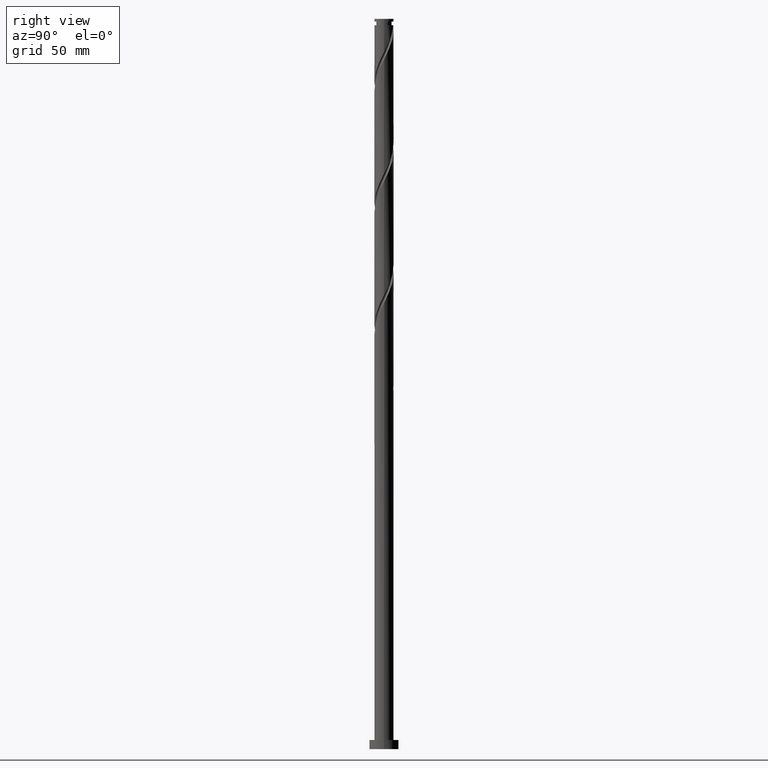
[diagram: clean part render]
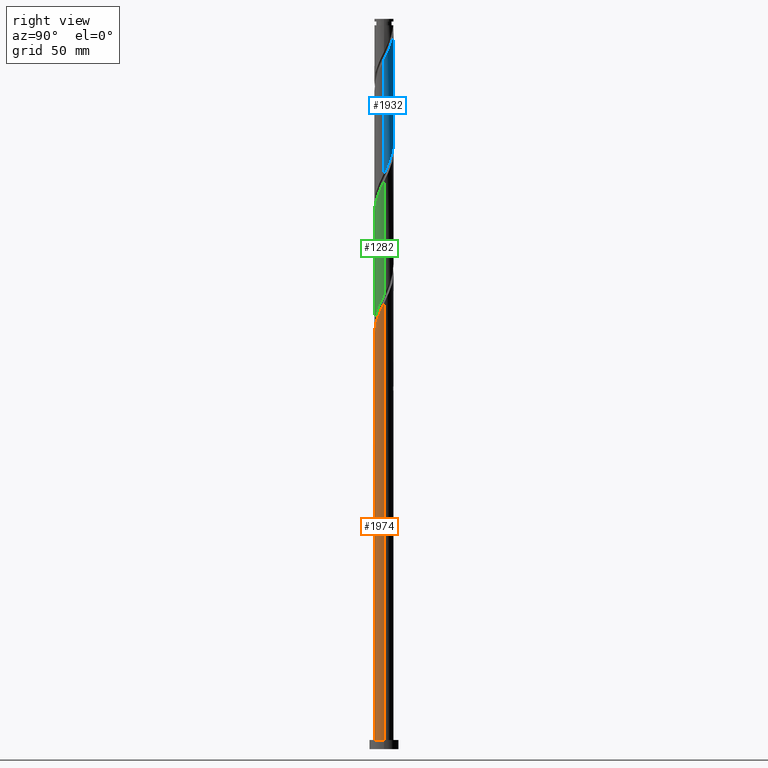
[diagram: same view with three faces highlighted in distinct colors, each labeled with its STEP entity id]
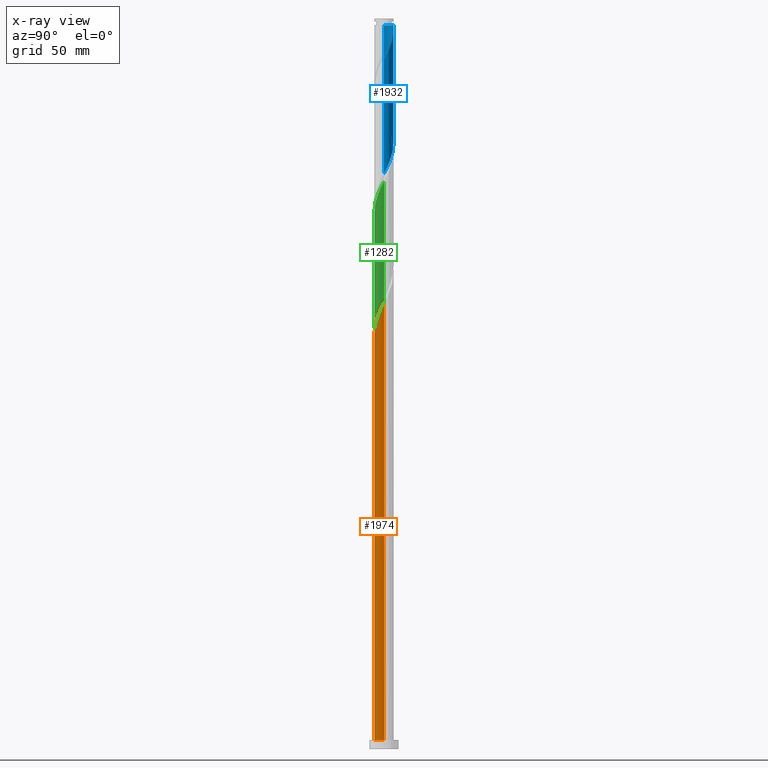
[diagram: x-ray of the same camera — body ghosted, the three highlighted faces saturated]
A machine part, right view with three faces highlighted in distinct colors.
The next image is the same camera in x-ray (body ghosted, the three faces saturated) — at least one of them is partly hidden behind the body in this view.
Their STEP definitions:

[orange] entity #1974 — the highlighted cylindrical surface (edge-blend (fillet) strip) has radius 5.25 mm, axis along (-0, -0, -1).
#50 = CARTESIAN_POINT ( 'NONE',  ( -5.250000000000007105, -2.018036081789796994E-14, 211.0236160880426723 ) ) ;
#59 = CARTESIAN_POINT ( 'NONE',  ( -3.933332297989963866, -3.477268616829745529, 218.7046148871196465 ) ) ;
#67 = CARTESIAN_POINT ( 'NONE',  ( -0.04779884617294594129, -5.249782402186265351, 227.5935037760085322 ) ) ;
#73 = EDGE_LOOP ( 'NONE', ( #1934, #1780, #535, #1417 ) ) ;
#78 = CARTESIAN_POINT ( 'NONE',  ( 5.153354738608597607, -1.144515236584392692, 242.0379482204530461 ) ) ;
#186 = CARTESIAN_POINT ( 'NONE',  ( -1.676917713865612836, -5.005489703279514480, 224.2601704426753031 ) ) ;
#197 = CARTESIAN_POINT ( 'NONE',  ( -4.298807956775191563, -3.063858733603724627, 217.5935037760086459 ) ) ;
#224 = VERTEX_POINT ( 'NONE', #1618 ) ;
#229 = CARTESIAN_POINT ( 'NONE',  ( -1.138245462365774729, -5.125124122146097250, 225.3712815537863889 ) ) ;
#294 = CARTESIAN_POINT ( 'NONE',  ( 0.000000000000000000, 0.000000000000000000, 400.0000000000000000 ) ) ;
#354 = CARTESIAN_POINT ( 'NONE',  ( 5.250000000000007105, 3.647413362642301460E-15, 244.3569494213759867 ) ) ;
#364 = CARTESIAN_POINT ( 'NONE',  ( -5.007610418509825578, -1.576812574921922616, 214.2601704426752178 ) ) ;
#384 = CARTESIAN_POINT ( 'NONE',  ( -4.570344347720273426, -2.583496186035778575, 216.4823926648975316 ) ) ;
#470 = CARTESIAN_POINT ( 'NONE',  ( 0.000000000000000000, 0.000000000000000000, 5.000000000000000000 ) ) ;
#490 = VECTOR ( 'NONE', #853, 1000.000000000000000 ) ;
#509 = LINE ( 'NONE', #973, #867 ) ;
#522 = CARTESIAN_POINT ( 'NONE',  ( 5.216027204956867891, -0.5962886860824341273, 243.1490593315642172 ) ) ;
#535 = ORIENTED_EDGE ( 'NONE', *, *, #1150, .T. ) ;
#540 = CARTESIAN_POINT ( 'NONE',  ( -4.841880738665356176, -2.103133638467831634, 215.3712815537863605 ) ) ;
#584 = VERTEX_POINT ( 'NONE', #939 ) ;
#639 = DIRECTION ( 'NONE',  ( 0.000000000000000000, 0.000000000000000000, 1.000000000000000000 ) ) ;
#679 = CARTESIAN_POINT ( 'NONE',  ( 5.250000000000007105, -0.2991121215937790900, 243.7513581119914079 ) ) ;
#683 = EDGE_CURVE ( 'NONE', #584, #224, #1035, .T. ) ;
#689 = CARTESIAN_POINT ( 'NONE',  ( 1.044736808961954866, -5.145000000000004903, 229.8157259982308176 ) ) ;
#695 = CARTESIAN_POINT ( 'NONE',  ( -5.250000000000007105, -2.018036081789797309E-14, 211.0236160880426723 ) ) ;
#708 = EDGE_CURVE ( 'NONE', #1312, #1139, #1533, .T. ) ;
#814 = AXIS2_PLACEMENT_3D ( 'NONE', #470, #639, #1380 ) ;
#816 = CARTESIAN_POINT ( 'NONE',  ( -3.567856639204736613, -3.890678500055767319, 219.8157259982307892 ) ) ;
#825 = CARTESIAN_POINT ( 'NONE',  ( 4.242307527799417777, -3.141624902544846609, 237.5935037760085606 ) ) ;
#833 = CARTESIAN_POINT ( 'NONE',  ( -2.680972866025394197, -4.547456946508574127, 222.0379482204530177 ) ) ;
#844 = CARTESIAN_POINT ( 'NONE',  ( 4.802783475295240301, -2.190947529756130052, 239.8157259982307892 ) ) ;
#853 = DIRECTION ( 'NONE',  ( -0.000000000000000000, -0.000000000000000000, -1.000000000000000000 ) ) ;
#867 = VECTOR ( 'NONE', #1898, 1000.000000000000000 ) ;
#911 = DIRECTION ( 'NONE',  ( -0.000000000000000000, -0.000000000000000000, -1.000000000000000000 ) ) ;
#939 = CARTESIAN_POINT ( 'NONE',  ( -5.250000000000000000, 0.000000000000000000, 5.000000000000000000 ) ) ;
#958 = CARTESIAN_POINT ( 'NONE',  ( 3.047074594884212395, -4.275258636996277950, 234.2601704426752462 ) ) ;
#973 = CARTESIAN_POINT ( 'NONE',  ( -5.250000000000000000, 0.000000000000000000, 400.0000000000000000 ) ) ;
#977 = CARTESIAN_POINT ( 'NONE',  ( 0.5039755185200481824, -5.254806263359855123, 228.7046148871197317 ) ) ;
#985 = CARTESIAN_POINT ( 'NONE',  ( -2.178945289945503294, -4.776473324894045192, 223.1490593315641320 ) ) ;
#1035 = CIRCLE ( 'NONE', #814, 5.250000000000000000 ) ;
#1117 = CARTESIAN_POINT ( 'NONE',  ( 5.250000000000007105, 3.647413362642301460E-15, 244.3569494213760152 ) ) ;
#1139 = VERTEX_POINT ( 'NONE', #1117 ) ;
#1150 = EDGE_CURVE ( 'NONE', #1312, #584, #509, .T. ) ;
#1152 = CARTESIAN_POINT ( 'NONE',  ( -3.124414752615067403, -4.219067723282170057, 220.9268371093419603 ) ) ;
#1292 = CARTESIAN_POINT ( 'NONE',  ( 1.585498099403859662, -5.035193736640157347, 230.9268371093419034 ) ) ;
#1301 = CARTESIAN_POINT ( 'NONE',  ( 3.869364956144051959, -3.548311547224173523, 236.4823926648974179 ) ) ;
#1308 = CARTESIAN_POINT ( 'NONE',  ( -0.5995732108659377335, -5.244758541012678243, 226.4823926648974748 ) ) ;
#1312 = VERTEX_POINT ( 'NONE', #695 ) ;
#1380 = DIRECTION ( 'NONE',  ( 1.000000000000000000, 0.000000000000000000, 0.000000000000000000 ) ) ;
#1417 = ORIENTED_EDGE ( 'NONE', *, *, #683, .T. ) ;
#1428 = AXIS2_PLACEMENT_3D ( 'NONE', #294, #911, #1683 ) ;
#1451 = CARTESIAN_POINT ( 'NONE',  ( -5.250000000000005329, -0.2511809962554388820, 211.5321646136066533 ) ) ;
#1463 = CARTESIAN_POINT ( 'NONE',  ( -5.226019884829717022, -0.5012146878977671305, 212.0379482204530461 ) ) ;
#1475 = CARTESIAN_POINT ( 'NONE',  ( -5.173340098354294092, -1.050491511376014042, 213.1490593315641888 ) ) ;
#1500 = LINE ( 'NONE', #1977, #490 ) ;
#1529 = CYLINDRICAL_SURFACE ( 'NONE', #1428, 5.250000000000000000 ) ;
#1533 =( BOUNDED_CURVE ( )  B_SPLINE_CURVE ( 2, ( #50, #1451, #1463, #1475, #364, #540, #384, #197, #59, #816, #1152, #833, #985, #186, #229, #1308, #67, #977, #689, #1292, #1922, #1750, #958, #1587, #1301, #825, #1903, #844, #1606, #78, #522, #679, #354 ),
 .UNSPECIFIED., .F., .T. ) 
 B_SPLINE_CURVE_WITH_KNOTS ( ( 3, 2, 2, 2, 2, 2, 2, 2, 2, 2, 2, 2, 2, 2, 2, 2, 3 ),
 ( 0.05452860127731153084, 0.05833333333333334814, 0.06666666666666665186, 0.07499999999999995559, 0.08333333333333337034, 0.09166666666666667407, 0.09999999999999997780, 0.1083333333333332815, 0.1166666666666666963, 0.1250000000000000000, 0.1333333333333333037, 0.1416666666666667185, 0.1500000000000000222, 0.1583333333333333259, 0.1666666666666666297, 0.1750000000000000444, 0.1795286012773113782 ),
 .UNSPECIFIED. ) 
 CURVE ( )  GEOMETRIC_REPRESENTATION_ITEM ( )  RATIONAL_B_SPLINE_CURVE ( ( 0.9066196499552294785, 0.9068171577856423138, 0.9090909090909411461, 0.9041108139711893088, 0.9090909090909411461, 0.9041108139711893088, 0.9090909090909411461, 0.9041108139711893088, 0.9090909090909411461, 0.9041108139711893088, 0.9090909090909411461, 0.9041108139711893088, 0.9090909090909411461, 0.9041108139711893088, 0.9090909090909411461, 0.9041108139711893088, 0.9090909090909411461, 0.9041108139711893088, 0.9090909090909411461, 0.9041108139711893088, 0.9090909090909411461, 0.9041108139711893088, 0.9090909090909411461, 0.9041108139711893088, 0.9090909090909411461, 0.9041108139711893088, 0.9090909090909411461, 0.9041108139711893088, 0.9090909090909411461, 0.9041108139711893088, 0.9090909090909411461, 0.9063845652764883631, 0.9066196499552294785 ) ) 
 REPRESENTATION_ITEM ( '' )  );
#1587 = CARTESIAN_POINT ( 'NONE',  ( 3.496422384488685697, -3.954998191903503102, 235.3712815537863889 ) ) ;
#1606 = CARTESIAN_POINT ( 'NONE',  ( 4.978069106951918954, -1.667731383170261594, 240.9268371093419319 ) ) ;
#1618 = CARTESIAN_POINT ( 'NONE',  ( 5.250000000000000000, 6.429395695523603167E-16, 5.000000000000000000 ) ) ;
#1640 = EDGE_CURVE ( 'NONE', #1139, #224, #1500, .T. ) ;
#1683 = DIRECTION ( 'NONE',  ( -1.000000000000000000, 0.000000000000000000, 0.000000000000000000 ) ) ;
#1695 = FACE_OUTER_BOUND ( 'NONE', #73, .T. ) ;
#1750 = CARTESIAN_POINT ( 'NONE',  ( 2.597726805279741757, -4.595519082089055019, 233.1490593315641604 ) ) ;
#1780 = ORIENTED_EDGE ( 'NONE', *, *, #708, .F. ) ;
#1898 = DIRECTION ( 'NONE',  ( -0.000000000000000000, -0.000000000000000000, -1.000000000000000000 ) ) ;
#1903 = CARTESIAN_POINT ( 'NONE',  ( 4.522545501547327262, -2.666286216150488553, 238.7046148871197317 ) ) ;
#1922 = CARTESIAN_POINT ( 'NONE',  ( 2.091612452341800932, -4.815356409364604851, 232.0379482204530177 ) ) ;
#1934 = ORIENTED_EDGE ( 'NONE', *, *, #1640, .F. ) ;
#1974 = ADVANCED_FACE ( 'NONE', ( #1695 ), #1529, .T. ) ;
#1977 = CARTESIAN_POINT ( 'NONE',  ( 5.250000000000000000, 6.429395695523603167E-16, 400.0000000000000000 ) ) ;

[blue] entity #1932 — the highlighted cylindrical surface (edge-blend (fillet) strip) has radius 5.25 mm, axis along (-0, -0, -1).
#71 = VECTOR ( 'NONE', #1143, 1000.000000000000000 ) ;
#82 = VERTEX_POINT ( 'NONE', #344 ) ;
#87 = CARTESIAN_POINT ( 'NONE',  ( 5.216027204956860786, 0.5962886860824307966, 316.4823926648974748 ) ) ;
#96 = CARTESIAN_POINT ( 'NONE',  ( 2.597726805279742202, 4.595519082089047913, 326.4823926648975885 ) ) ;
#105 = CARTESIAN_POINT ( 'NONE',  ( 4.522545501547324598, 2.666286216150479671, 320.9268371093419887 ) ) ;
#126 = DIRECTION ( 'NONE',  ( -0.000000000000000000, -0.000000000000000000, -1.000000000000000000 ) ) ;
#128 = ORIENTED_EDGE ( 'NONE', *, *, #279, .T. ) ;
#151 = EDGE_LOOP ( 'NONE', ( #1455, #128, #741, #192, #624 ) ) ;
#192 = ORIENTED_EDGE ( 'NONE', *, *, #763, .F. ) ;
#209 = CARTESIAN_POINT ( 'NONE',  ( -5.250000000000000000, 0.000000000000000000, 400.0000000000000000 ) ) ;
#218 =( BOUNDED_CURVE ( )  B_SPLINE_CURVE ( 2, ( #1626, #1110, #342, #661, #670, #1123, #967, #1597, #1914, #1134, #1760, #1646, #1503, #245, #1979, #266, #426, #1635, #1676 ),
 .UNSPECIFIED., .F., .T. ) 
 B_SPLINE_CURVE_WITH_KNOTS ( ( 3, 2, 2, 2, 2, 2, 2, 2, 2, 3 ),
 ( 0.6795286012773115170, 0.6833333333333333481, 0.6916666666666667629, 0.7000000000000000666, 0.7083333333333333703, 0.7166666666666668961, 0.7250000000000001998, 0.7333333333333336146, 0.7416666666666670293, 0.7500000000000003331 ),
 .UNSPECIFIED. ) 
 CURVE ( )  GEOMETRIC_REPRESENTATION_ITEM ( )  RATIONAL_B_SPLINE_CURVE ( ( 0.9066196499552294785, 0.9068171577856422028, 0.9090909090909411461, 0.9041108139711893088, 0.9090909090909411461, 0.9041108139711893088, 0.9090909090909411461, 0.9041108139711893088, 0.9090909090909411461, 0.9041108139711893088, 0.9090909090909411461, 0.9041108139711893088, 0.9090909090909411461, 0.9041108139711893088, 0.9090909090909411461, 0.9041108139711893088, 0.9090909090909411461, 0.9041108139711890868, 0.9090909090909413681 ) ) 
 REPRESENTATION_ITEM ( '' )  );
#238 = CARTESIAN_POINT ( 'NONE',  ( 3.869364956144049295, 3.548311547224167750, 323.1490593315641604 ) ) ;
#245 = CARTESIAN_POINT ( 'NONE',  ( 1.676917713865613502, 5.005489703279513591, 390.9268371093419319 ) ) ;
#246 = CARTESIAN_POINT ( 'NONE',  ( 1.585498099403864769, 5.035193736640148465, 328.7046148871197033 ) ) ;
#258 = CARTESIAN_POINT ( 'NONE',  ( -4.570344347720266320, 2.583496186035776354, 343.1490593315642172 ) ) ;
#266 = CARTESIAN_POINT ( 'NONE',  ( 0.5995732108659387327, 5.244758541012678243, 393.1490593315641604 ) ) ;
#279 = EDGE_CURVE ( 'NONE', #82, #1296, #1788, .T. ) ;
#342 = CARTESIAN_POINT ( 'NONE',  ( 5.226019884829717022, 0.5012146878977641329, 378.7046148871197033 ) ) ;
#344 = CARTESIAN_POINT ( 'NONE',  ( 5.250000000000006217, -2.989683084133032828E-16, 377.6902827547093580 ) ) ;
#366 = DIRECTION ( 'NONE',  ( -0.000000000000000000, -0.000000000000000000, -1.000000000000000000 ) ) ;
#383 = CIRCLE ( 'NONE', #640, 5.249999999999964473 ) ;
#404 = CARTESIAN_POINT ( 'NONE',  ( -2.178945289945499297, 4.776473324894038974, 336.4823926648974179 ) ) ;
#416 = CARTESIAN_POINT ( 'NONE',  ( -4.841880738665349959, 2.103133638467831190, 344.2601704426751894 ) ) ;
#426 = CARTESIAN_POINT ( 'NONE',  ( 0.04779884617294657967, 5.249782402186265351, 394.2601704426753031 ) ) ;
#428 = CARTESIAN_POINT ( 'NONE',  ( 0.000000000000000000, 0.000000000000000000, 396.4823926648974748 ) ) ;
#434 = VERTEX_POINT ( 'NONE', #886 ) ;
#439 = CARTESIAN_POINT ( 'NONE',  ( -1.138245462365771621, 5.125124122146089256, 334.2601704426751894 ) ) ;
#475 = EDGE_CURVE ( 'NONE', #1266, #434, #383, .T. ) ;
#481 = VECTOR ( 'NONE', #366, 1000.000000000000000 ) ;
#485 = FACE_OUTER_BOUND ( 'NONE', #151, .T. ) ;
#502 = EDGE_CURVE ( 'NONE', #1602, #1296, #1389, .T. ) ;
#560 = CARTESIAN_POINT ( 'NONE',  ( -5.226019884829710804, 0.5012146878977687958, 347.5935037760086175 ) ) ;
#570 = CARTESIAN_POINT ( 'NONE',  ( 2.091612452341802708, 4.815356409364597745, 327.5935037760085606 ) ) ;
#576 = CARTESIAN_POINT ( 'NONE',  ( -5.250000000000000000, -3.557722870118329166E-15, 348.6078359084190197 ) ) ;
#581 = CARTESIAN_POINT ( 'NONE',  ( 5.153354738608594054, 1.144515236584384255, 317.5935037760086175 ) ) ;
#591 = CARTESIAN_POINT ( 'NONE',  ( -5.250000000000000000, -3.557722870118329166E-15, 348.6078359084190197 ) ) ;
#624 = ORIENTED_EDGE ( 'NONE', *, *, #475, .T. ) ;
#640 = AXIS2_PLACEMENT_3D ( 'NONE', #428, #126, #1505 ) ;
#661 = CARTESIAN_POINT ( 'NONE',  ( 5.173340098354294092, 1.050491511376013376, 379.8157259982307323 ) ) ;
#670 = CARTESIAN_POINT ( 'NONE',  ( 5.007610418509827355, 1.576812574921920840, 380.9268371093418750 ) ) ;
#720 = CARTESIAN_POINT ( 'NONE',  ( -0.04779884617294290206, 5.249782402186260022, 332.0379482204530177 ) ) ;
#729 = CARTESIAN_POINT ( 'NONE',  ( 0.5039755185200498477, 5.254806263359850682, 330.9268371093418750 ) ) ;
#741 = ORIENTED_EDGE ( 'NONE', *, *, #502, .F. ) ;
#746 = CARTESIAN_POINT ( 'NONE',  ( 5.250000000000000888, 4.753596103771549200E-15, 315.2745025750855916 ) ) ;
#763 = EDGE_CURVE ( 'NONE', #1266, #1602, #1283, .T. ) ;
#850 = EDGE_CURVE ( 'NONE', #82, #434, #218, .T. ) ;
#876 = CARTESIAN_POINT ( 'NONE',  ( 3.047074594884214616, 4.275258636996269068, 325.3712815537864458 ) ) ;
#886 = CARTESIAN_POINT ( 'NONE',  ( -1.044736808961976182, 5.145000000000003126, 396.4823926648977022 ) ) ;
#896 = CARTESIAN_POINT ( 'NONE',  ( -4.298807956775186234, 3.063858733603723739, 342.0379482204530746 ) ) ;
#967 = CARTESIAN_POINT ( 'NONE',  ( 4.570344347720274314, 2.583496186035778130, 383.1490593315640467 ) ) ;
#1001 = CARTESIAN_POINT ( 'NONE',  ( -5.249999999999964473, 0.000000000000000000, 396.4823926648974748 ) ) ;
#1013 = CARTESIAN_POINT ( 'NONE',  ( -0.5995732108659357351, 5.244758541012672026, 333.1490593315642172 ) ) ;
#1024 = CARTESIAN_POINT ( 'NONE',  ( -3.124414752615059854, 4.219067723282166504, 338.7046148871197033 ) ) ;
#1036 = CARTESIAN_POINT ( 'NONE',  ( 5.250000000000000888, 0.2991121215937717071, 315.8800938844702273 ) ) ;
#1110 = CARTESIAN_POINT ( 'NONE',  ( 5.250000000000007105, 0.2511809962554356068, 378.1988312802735095 ) ) ;
#1123 = CARTESIAN_POINT ( 'NONE',  ( 4.841880738665357065, 2.103133638467828970, 382.0379482204530177 ) ) ;
#1134 = CARTESIAN_POINT ( 'NONE',  ( 3.567856639204737945, 3.890678500055766431, 386.4823926648974179 ) ) ;
#1143 = DIRECTION ( 'NONE',  ( -0.000000000000000000, -0.000000000000000000, -1.000000000000000000 ) ) ;
#1205 = CARTESIAN_POINT ( 'NONE',  ( -5.250000000000001776, 0.2511809962554235609, 348.0992873828550387 ) ) ;
#1210 = DIRECTION ( 'NONE',  ( -0.000000000000000000, -0.000000000000000000, -1.000000000000000000 ) ) ;
#1266 = VERTEX_POINT ( 'NONE', #1001 ) ;
#1283 = LINE ( 'NONE', #209, #71 ) ;
#1296 = VERTEX_POINT ( 'NONE', #1641 ) ;
#1348 = CARTESIAN_POINT ( 'NONE',  ( 3.496422384488685697, 3.954998191903494220, 324.2601704426754736 ) ) ;
#1375 = DIRECTION ( 'NONE',  ( -1.000000000000000000, 0.000000000000000000, 0.000000000000000000 ) ) ;
#1389 =( BOUNDED_CURVE ( )  B_SPLINE_CURVE ( 2, ( #591, #1205, #560, #1817, #1636, #416, #258, #896, #1494, #1484, #1024, #1797, #404, #1669, #439, #1013, #720, #729, #1648, #246, #570, #96, #876, #1348, #238, #1991, #105, #1970, #1678, #581, #87, #1036, #746 ),
 .UNSPECIFIED., .F., .T. ) 
 B_SPLINE_CURVE_WITH_KNOTS ( ( 3, 2, 2, 2, 2, 2, 2, 2, 2, 2, 2, 2, 2, 2, 2, 2, 3 ),
 ( 0.4295286012773112394, 0.4333333333333333481, 0.4416666666666666519, 0.4500000000000000111, 0.4583333333333333148, 0.4666666666666666741, 0.4749999999999999778, 0.4833333333333333370, 0.4916666666666666408, 0.5000000000000000000, 0.5083333333333333037, 0.5166666666666667185, 0.5250000000000000222, 0.5333333333333333259, 0.5416666666666666297, 0.5500000000000000444, 0.5545286012773114059 ),
 .UNSPECIFIED. ) 
 CURVE ( )  GEOMETRIC_REPRESENTATION_ITEM ( )  RATIONAL_B_SPLINE_CURVE ( ( 0.9066196499552243715, 0.9068171577856370957, 0.9090909090909361501, 0.9041108139711843128, 0.9090909090909361501, 0.9041108139711843128, 0.9090909090909361501, 0.9041108139711843128, 0.9090909090909361501, 0.9041108139711843128, 0.9090909090909361501, 0.9041108139711843128, 0.9090909090909361501, 0.9041108139711843128, 0.9090909090909361501, 0.9041108139711843128, 0.9090909090909361501, 0.9041108139711843128, 0.9090909090909361501, 0.9041108139711843128, 0.9090909090909361501, 0.9041108139711843128, 0.9090909090909361501, 0.9041108139711843128, 0.9090909090909361501, 0.9041108139711843128, 0.9090909090909361501, 0.9041108139711843128, 0.9090909090909361501, 0.9041108139711843128, 0.9090909090909361501, 0.9063845652764832561, 0.9066196499552243715 ) ) 
 REPRESENTATION_ITEM ( '' )  );
#1434 = CARTESIAN_POINT ( 'NONE',  ( 5.250000000000000000, 6.429395695523603167E-16, 400.0000000000000000 ) ) ;
#1455 = ORIENTED_EDGE ( 'NONE', *, *, #850, .F. ) ;
#1484 = CARTESIAN_POINT ( 'NONE',  ( -3.567856639204733948, 3.890678500055764655, 339.8157259982308460 ) ) ;
#1493 = AXIS2_PLACEMENT_3D ( 'NONE', #1724, #1210, #1375 ) ;
#1494 = CARTESIAN_POINT ( 'NONE',  ( -3.933332297989958537, 3.477268616829742420, 340.9268371093419319 ) ) ;
#1503 = CARTESIAN_POINT ( 'NONE',  ( 2.178945289945503738, 4.776473324894045192, 389.8157259982308460 ) ) ;
#1505 = DIRECTION ( 'NONE',  ( -1.000000000000000000, 0.000000000000000000, 0.000000000000000000 ) ) ;
#1597 = CARTESIAN_POINT ( 'NONE',  ( 4.298807956775192451, 3.063858733603723739, 384.2601704426753599 ) ) ;
#1602 = VERTEX_POINT ( 'NONE', #576 ) ;
#1626 = CARTESIAN_POINT ( 'NONE',  ( 5.250000000000006217, -2.989683084133032828E-16, 377.6902827547093580 ) ) ;
#1635 = CARTESIAN_POINT ( 'NONE',  ( -0.5039755185200675003, 5.254806263359856011, 395.3712815537865595 ) ) ;
#1636 = CARTESIAN_POINT ( 'NONE',  ( -5.007610418509818473, 1.576812574921923282, 345.3712815537864458 ) ) ;
#1641 = CARTESIAN_POINT ( 'NONE',  ( 5.250000000000000888, 4.753596103771549200E-15, 315.2745025750855916 ) ) ;
#1646 = CARTESIAN_POINT ( 'NONE',  ( 2.680972866025397305, 4.547456946508573239, 388.7046148871198170 ) ) ;
#1648 = CARTESIAN_POINT ( 'NONE',  ( 1.044736808961956420, 5.145000000000000462, 329.8157259982307892 ) ) ;
#1669 = CARTESIAN_POINT ( 'NONE',  ( -1.676917713865607951, 5.005489703279510927, 335.3712815537865026 ) ) ;
#1676 = CARTESIAN_POINT ( 'NONE',  ( -1.044736808961976182, 5.145000000000003126, 396.4823926648977022 ) ) ;
#1678 = CARTESIAN_POINT ( 'NONE',  ( 4.978069106951915401, 1.667731383170252712, 318.7046148871197602 ) ) ;
#1713 = CYLINDRICAL_SURFACE ( 'NONE', #1493, 5.250000000000000000 ) ;
#1724 = CARTESIAN_POINT ( 'NONE',  ( 0.000000000000000000, 0.000000000000000000, 400.0000000000000000 ) ) ;
#1760 = CARTESIAN_POINT ( 'NONE',  ( 3.124414752615067847, 4.219067723282169169, 387.5935037760086175 ) ) ;
#1788 = LINE ( 'NONE', #1434, #481 ) ;
#1797 = CARTESIAN_POINT ( 'NONE',  ( -2.680972866025389756, 4.547456946508571463, 337.5935037760086175 ) ) ;
#1817 = CARTESIAN_POINT ( 'NONE',  ( -5.173340098354292316, 1.050491511376014042, 346.4823926648975885 ) ) ;
#1914 = CARTESIAN_POINT ( 'NONE',  ( 3.933332297989966087, 3.477268616829743308, 385.3712815537863321 ) ) ;
#1932 = ADVANCED_FACE ( 'NONE', ( #485 ), #1713, .T. ) ;
#1970 = CARTESIAN_POINT ( 'NONE',  ( 4.802783475295235860, 2.190947529756125611, 319.8157259982308460 ) ) ;
#1979 = CARTESIAN_POINT ( 'NONE',  ( 1.138245462365778282, 5.125124122146095473, 392.0379482204530746 ) ) ;
#1991 = CARTESIAN_POINT ( 'NONE',  ( 4.242307527799416889, 3.141624902544836395, 322.0379482204531882 ) ) ;

[green] entity #1282 — the highlighted cylindrical surface (edge-blend (fillet) strip) has radius 5.25 mm, axis along (-0, -0, -1).
#30 = CARTESIAN_POINT ( 'NONE',  ( 5.249999999999998224, -0.2511809962554498177, 248.0992873828549250 ) ) ;
#42 = CARTESIAN_POINT ( 'NONE',  ( -1.676917713865612836, -5.005489703279514480, 290.9268371093419887 ) ) ;
#52 = CARTESIAN_POINT ( 'NONE',  ( 0.04779884617294164612, -5.249782402186259134, 232.0379482204530461 ) ) ;
#61 = CARTESIAN_POINT ( 'NONE',  ( -5.250000000000004441, -0.2511809962554525932, 278.1988312802733958 ) ) ;
#69 = CARTESIAN_POINT ( 'NONE',  ( -5.007610418509825578, -1.576812574921922616, 280.9268371093419319 ) ) ;
#79 = CARTESIAN_POINT ( 'NONE',  ( -3.124414752615067403, -4.219067723282170057, 287.5935037760086175 ) ) ;
#158 = CARTESIAN_POINT ( 'NONE',  ( 4.841880738665349959, -2.103133638467833411, 244.2601704426752462 ) ) ;
#200 = CARTESIAN_POINT ( 'NONE',  ( -5.216027204956860786, -0.5962886860824313517, 216.4823926648975316 ) ) ;
#211 = CARTESIAN_POINT ( 'NONE',  ( 1.138245462365769844, -5.125124122146091032, 234.2601704426752747 ) ) ;
#217 = EDGE_CURVE ( 'NONE', #1771, #1763, #1178, .T. ) ;
#226 = CARTESIAN_POINT ( 'NONE',  ( 5.250000000000000888, 4.753596103771549200E-15, 248.6078359084190197 ) ) ;
#244 = CARTESIAN_POINT ( 'NONE',  ( -5.249999999999999112, 7.773176018745929430E-15, 215.2745025750856200 ) ) ;
#277 = CARTESIAN_POINT ( 'NONE',  ( 4.978069106951918954, -1.667731383170261594, 307.5935037760085606 ) ) ;
#287 = AXIS2_PLACEMENT_3D ( 'NONE', #1927, #545, #1611 ) ;
#356 = CARTESIAN_POINT ( 'NONE',  ( 1.585498099403859662, -5.035193736640157347, 297.5935037760086175 ) ) ;
#374 = EDGE_CURVE ( 'NONE', #1639, #1000, #1323, .T. ) ;
#378 = CARTESIAN_POINT ( 'NONE',  ( 0.5995732108659352910, -5.244758541012672026, 233.1490593315641888 ) ) ;
#385 = CARTESIAN_POINT ( 'NONE',  ( -5.226019884829717022, -0.5012146878977671305, 278.7046148871197033 ) ) ;
#388 = VECTOR ( 'NONE', #1224, 1000.000000000000000 ) ;
#394 = CARTESIAN_POINT ( 'NONE',  ( 4.242307527799417777, -3.141624902544846609, 304.2601704426752462 ) ) ;
#444 = DIRECTION ( 'NONE',  ( -0.000000000000000000, -0.000000000000000000, -1.000000000000000000 ) ) ;
#472 = CARTESIAN_POINT ( 'NONE',  ( 5.226019884829709028, -0.5012146878977704612, 247.5935037760085891 ) ) ;
#494 = CARTESIAN_POINT ( 'NONE',  ( 4.570344347720266320, -2.583496186035776354, 243.1490593315641604 ) ) ;
#515 = CARTESIAN_POINT ( 'NONE',  ( 0.5039755185200481824, -5.254806263359855123, 295.3712815537862753 ) ) ;
#533 = CARTESIAN_POINT ( 'NONE',  ( -3.047074594884211951, -4.275258636996270845, 225.3712815537863321 ) ) ;
#541 = CARTESIAN_POINT ( 'NONE',  ( -3.933332297989963866, -3.477268616829745529, 285.3712815537863889 ) ) ;
#545 = DIRECTION ( 'NONE',  ( -0.000000000000000000, -0.000000000000000000, -1.000000000000000000 ) ) ;
#549 = CARTESIAN_POINT ( 'NONE',  ( 2.680972866025387980, -4.547456946508572351, 237.5935037760086175 ) ) ;
#565 = FACE_OUTER_BOUND ( 'NONE', #1426, .T. ) ;
#586 = VECTOR ( 'NONE', #444, 1000.000000000000000 ) ;
#642 = CARTESIAN_POINT ( 'NONE',  ( 5.250000000000001776, 4.753596103771549200E-15, 248.6078359084190481 ) ) ;
#652 = CARTESIAN_POINT ( 'NONE',  ( 4.298807956775184458, -3.063858733603725959, 242.0379482204530746 ) ) ;
#663 = CARTESIAN_POINT ( 'NONE',  ( -1.138245462365774729, -5.125124122146097250, 292.0379482204530177 ) ) ;
#672 = CARTESIAN_POINT ( 'NONE',  ( -0.5039755185200520682, -5.254806263359850682, 230.9268371093420171 ) ) ;
#691 = CARTESIAN_POINT ( 'NONE',  ( -4.841880738665356176, -2.103133638467831634, 282.0379482204530746 ) ) ;
#699 = CARTESIAN_POINT ( 'NONE',  ( -2.680972866025394197, -4.547456946508574127, 288.7046148871197033 ) ) ;
#710 = CARTESIAN_POINT ( 'NONE',  ( 5.250000000000007105, 3.647413362642301460E-15, 311.0236160880426723 ) ) ;
#711 = CARTESIAN_POINT ( 'NONE',  ( 3.496422384488685697, -3.954998191903503102, 302.0379482204530177 ) ) ;
#808 = CARTESIAN_POINT ( 'NONE',  ( -1.044736808961955532, -5.145000000000000462, 229.8157259982308176 ) ) ;
#818 = CARTESIAN_POINT ( 'NONE',  ( -5.249999999999999112, 7.773176018745929430E-15, 215.2745025750855916 ) ) ;
#856 = CARTESIAN_POINT ( 'NONE',  ( 5.216027204956867891, -0.5962886860824341273, 309.8157259982309029 ) ) ;
#864 = CARTESIAN_POINT ( 'NONE',  ( 5.153354738608597607, -1.144515236584392692, 308.7046148871197602 ) ) ;
#891 = ORIENTED_EDGE ( 'NONE', *, *, #1215, .F. ) ;
#970 = CARTESIAN_POINT ( 'NONE',  ( -3.496422384488684809, -3.954998191903495108, 224.2601704426753599 ) ) ;
#979 = CARTESIAN_POINT ( 'NONE',  ( -5.250000000000007105, -5.530913705646111693E-15, 277.6902827547093011 ) ) ;
#982 = CYLINDRICAL_SURFACE ( 'NONE', #287, 5.250000000000000000 ) ;
#987 = CARTESIAN_POINT ( 'NONE',  ( -5.153354738608592278, -1.144515236584386253, 217.5935037760086743 ) ) ;
#1000 = VERTEX_POINT ( 'NONE', #710 ) ;
#1011 = LINE ( 'NONE', #1664, #586 ) ;
#1075 = ORIENTED_EDGE ( 'NONE', *, *, #374, .F. ) ;
#1125 = CARTESIAN_POINT ( 'NONE',  ( 1.044736808961954866, -5.145000000000004903, 296.4823926648974179 ) ) ;
#1137 = CARTESIAN_POINT ( 'NONE',  ( -2.091612452341802264, -4.815356409364597745, 227.5935037760085891 ) ) ;
#1145 = CARTESIAN_POINT ( 'NONE',  ( -4.242307527799415112, -3.141624902544839060, 222.0379482204530177 ) ) ;
#1163 = CARTESIAN_POINT ( 'NONE',  ( -5.250000000000000888, -0.2991121215937590505, 215.8800938844701989 ) ) ;
#1178 =( BOUNDED_CURVE ( )  B_SPLINE_CURVE ( 2, ( #642, #30, #472, #1546, #1393, #158, #494, #652, #1274, #1895, #1599, #549, #1303, #1939, #211, #378, #52, #672, #808, #1753, #1137, #1777, #533, #970, #1924, #1145, #1445, #1608, #1769, #987, #200, #1163, #818 ),
 .UNSPECIFIED., .F., .T. ) 
 B_SPLINE_CURVE_WITH_KNOTS ( ( 3, 2, 2, 2, 2, 2, 2, 2, 2, 2, 2, 2, 2, 2, 2, 2, 3 ),
 ( 0.8045286012773116280, 0.8083333333333333481, 0.8166666666666666519, 0.8249999999999999556, 0.8333333333333333703, 0.8416666666666666741, 0.8499999999999999778, 0.8583333333333332815, 0.8666666666666666963, 0.8750000000000000000, 0.8833333333333333037, 0.8916666666666667185, 0.9000000000000000222, 0.9083333333333333259, 0.9166666666666666297, 0.9250000000000000444, 0.9295286012773116280 ),
 .UNSPECIFIED. ) 
 CURVE ( )  GEOMETRIC_REPRESENTATION_ITEM ( )  RATIONAL_B_SPLINE_CURVE ( ( 0.9066196499552244825, 0.9068171577856373178, 0.9090909090909361501, 0.9041108139711843128, 0.9090909090909361501, 0.9041108139711843128, 0.9090909090909361501, 0.9041108139711843128, 0.9090909090909361501, 0.9041108139711843128, 0.9090909090909361501, 0.9041108139711843128, 0.9090909090909361501, 0.9041108139711843128, 0.9090909090909361501, 0.9041108139711843128, 0.9090909090909361501, 0.9041108139711843128, 0.9090909090909361501, 0.9041108139711843128, 0.9090909090909361501, 0.9041108139711843128, 0.9090909090909361501, 0.9041108139711843128, 0.9090909090909361501, 0.9041108139711843128, 0.9090909090909361501, 0.9041108139711843128, 0.9090909090909361501, 0.9041108139711843128, 0.9090909090909361501, 0.9063845652764831451, 0.9066196499552244825 ) ) 
 REPRESENTATION_ITEM ( '' )  );
#1183 = CARTESIAN_POINT ( 'NONE',  ( 5.250000000000008882, -0.2991121215937480038, 310.4180247786581504 ) ) ;
#1190 = CARTESIAN_POINT ( 'NONE',  ( -5.250000000000007105, -5.530913705646111693E-15, 277.6902827547093011 ) ) ;
#1194 = CARTESIAN_POINT ( 'NONE',  ( 3.869364956144051959, -3.548311547224173523, 303.1490593315641036 ) ) ;
#1215 = EDGE_CURVE ( 'NONE', #1000, #1771, #1388, .T. ) ;
#1224 = DIRECTION ( 'NONE',  ( -0.000000000000000000, -0.000000000000000000, -1.000000000000000000 ) ) ;
#1274 = CARTESIAN_POINT ( 'NONE',  ( 3.933332297989958537, -3.477268616829744197, 240.9268371093419319 ) ) ;
#1282 = ADVANCED_FACE ( 'NONE', ( #565 ), #982, .T. ) ;
#1285 = CARTESIAN_POINT ( 'NONE',  ( -0.5995732108659377335, -5.244758541012678243, 293.1490593315641036 ) ) ;
#1303 = CARTESIAN_POINT ( 'NONE',  ( 2.178945289945498409, -4.776473324894038974, 236.4823926648974179 ) ) ;
#1309 = CARTESIAN_POINT ( 'NONE',  ( -4.570344347720273426, -2.583496186035778575, 283.1490593315641604 ) ) ;
#1317 = CARTESIAN_POINT ( 'NONE',  ( -2.178945289945503294, -4.776473324894045192, 289.8157259982307892 ) ) ;
#1323 =( BOUNDED_CURVE ( )  B_SPLINE_CURVE ( 2, ( #979, #61, #385, #1628, #69, #691, #1309, #1930, #541, #1476, #79, #699, #1317, #42, #663, #1285, #1905, #515, #1125, #356, #1960, #1358, #1981, #711, #1194, #394, #1806, #1658, #277, #864, #856, #1183, #1329 ),
 .UNSPECIFIED., .F., .T. ) 
 B_SPLINE_CURVE_WITH_KNOTS ( ( 3, 2, 2, 2, 2, 2, 2, 2, 2, 2, 2, 2, 2, 2, 2, 2, 3 ),
 ( 0.3045286012773117390, 0.3083333333333333481, 0.3166666666666666519, 0.3249999999999999556, 0.3333333333333333703, 0.3416666666666666741, 0.3499999999999999778, 0.3583333333333332815, 0.3666666666666666963, 0.3750000000000000000, 0.3833333333333333037, 0.3916666666666667185, 0.4000000000000000222, 0.4083333333333333259, 0.4166666666666666297, 0.4250000000000000444, 0.4295286012773118500 ),
 .UNSPECIFIED. ) 
 CURVE ( )  GEOMETRIC_REPRESENTATION_ITEM ( )  RATIONAL_B_SPLINE_CURVE ( ( 0.9066196499552294785, 0.9068171577856423138, 0.9090909090909411461, 0.9041108139711893088, 0.9090909090909411461, 0.9041108139711893088, 0.9090909090909411461, 0.9041108139711893088, 0.9090909090909411461, 0.9041108139711893088, 0.9090909090909411461, 0.9041108139711893088, 0.9090909090909411461, 0.9041108139711893088, 0.9090909090909411461, 0.9041108139711893088, 0.9090909090909411461, 0.9041108139711893088, 0.9090909090909411461, 0.9041108139711893088, 0.9090909090909411461, 0.9041108139711893088, 0.9090909090909411461, 0.9041108139711893088, 0.9090909090909411461, 0.9041108139711893088, 0.9090909090909411461, 0.9041108139711893088, 0.9090909090909411461, 0.9041108139711893088, 0.9090909090909411461, 0.9063845652764880301, 0.9066196499552294785 ) ) 
 REPRESENTATION_ITEM ( '' )  );
#1329 = CARTESIAN_POINT ( 'NONE',  ( 5.250000000000007105, 3.647413362642301460E-15, 311.0236160880426723 ) ) ;
#1358 = CARTESIAN_POINT ( 'NONE',  ( 2.597726805279741757, -4.595519082089055019, 299.8157259982308460 ) ) ;
#1388 = LINE ( 'NONE', #1709, #388 ) ;
#1393 = CARTESIAN_POINT ( 'NONE',  ( 5.007610418509818473, -1.576812574921925947, 245.3712815537863889 ) ) ;
#1397 = ORIENTED_EDGE ( 'NONE', *, *, #217, .F. ) ;
#1426 = EDGE_LOOP ( 'NONE', ( #891, #1075, #1487, #1397 ) ) ;
#1445 = CARTESIAN_POINT ( 'NONE',  ( -4.522545501547324598, -2.666286216150480559, 220.9268371093419319 ) ) ;
#1476 = CARTESIAN_POINT ( 'NONE',  ( -3.567856639204736613, -3.890678500055767319, 286.4823926648974179 ) ) ;
#1487 = ORIENTED_EDGE ( 'NONE', *, *, #1575, .T. ) ;
#1546 = CARTESIAN_POINT ( 'NONE',  ( 5.173340098354292316, -1.050491511376014708, 246.4823926648975316 ) ) ;
#1575 = EDGE_CURVE ( 'NONE', #1639, #1763, #1011, .T. ) ;
#1599 = CARTESIAN_POINT ( 'NONE',  ( 3.124414752615059410, -4.219067723282167393, 238.7046148871196749 ) ) ;
#1608 = CARTESIAN_POINT ( 'NONE',  ( -4.802783475295234972, -2.190947529756126499, 219.8157259982308460 ) ) ;
#1611 = DIRECTION ( 'NONE',  ( -1.000000000000000000, 0.000000000000000000, 0.000000000000000000 ) ) ;
#1628 = CARTESIAN_POINT ( 'NONE',  ( -5.173340098354294092, -1.050491511376014042, 279.8157259982307892 ) ) ;
#1639 = VERTEX_POINT ( 'NONE', #1190 ) ;
#1658 = CARTESIAN_POINT ( 'NONE',  ( 4.802783475295240301, -2.190947529756130052, 306.4823926648974748 ) ) ;
#1664 = CARTESIAN_POINT ( 'NONE',  ( -5.250000000000000000, 0.000000000000000000, 400.0000000000000000 ) ) ;
#1709 = CARTESIAN_POINT ( 'NONE',  ( 5.250000000000000000, 6.429395695523603167E-16, 400.0000000000000000 ) ) ;
#1753 = CARTESIAN_POINT ( 'NONE',  ( -1.585498099403861882, -5.035193736640150242, 228.7046148871197317 ) ) ;
#1763 = VERTEX_POINT ( 'NONE', #244 ) ;
#1769 = CARTESIAN_POINT ( 'NONE',  ( -4.978069106951914513, -1.667731383170254933, 218.7046148871197033 ) ) ;
#1771 = VERTEX_POINT ( 'NONE', #226 ) ;
#1777 = CARTESIAN_POINT ( 'NONE',  ( -2.597726805279741313, -4.595519082089047913, 226.4823926648974748 ) ) ;
#1806 = CARTESIAN_POINT ( 'NONE',  ( 4.522545501547327262, -2.666286216150488553, 305.3712815537863321 ) ) ;
#1895 = CARTESIAN_POINT ( 'NONE',  ( 3.567856639204733060, -3.890678500055764655, 239.8157259982308176 ) ) ;
#1905 = CARTESIAN_POINT ( 'NONE',  ( -0.04779884617294594129, -5.249782402186265351, 294.2601704426752462 ) ) ;
#1924 = CARTESIAN_POINT ( 'NONE',  ( -3.869364956144048850, -3.548311547224167750, 223.1490593315641320 ) ) ;
#1927 = CARTESIAN_POINT ( 'NONE',  ( 0.000000000000000000, 0.000000000000000000, 400.0000000000000000 ) ) ;
#1930 = CARTESIAN_POINT ( 'NONE',  ( -4.298807956775191563, -3.063858733603724627, 284.2601704426751894 ) ) ;
#1939 = CARTESIAN_POINT ( 'NONE',  ( 1.676917713865607507, -5.005489703279510927, 235.3712815537863889 ) ) ;
#1960 = CARTESIAN_POINT ( 'NONE',  ( 2.091612452341800932, -4.815356409364604851, 298.7046148871197033 ) ) ;
#1981 = CARTESIAN_POINT ( 'NONE',  ( 3.047074594884212395, -4.275258636996277950, 300.9268371093419319 ) ) ;